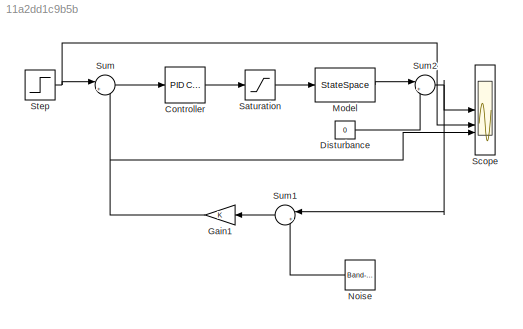
MODEL slx_11a2dd1c9b5b
KIND model
CONFIG AbsTol = auto
CONFIG EnableMultiTasking = off
CONFIG FixedStep = auto
CONFIG MaxStep = auto
CONFIG MinStep = auto
CONFIG RelTol = 1e-3
CONFIG SampleTimeConstraint = Unconstrained
CONFIG SolverName = VariableStepAuto
CONFIG StartTime = 0.0
CONFIG StopTime = 30
BLOCK [Reference] Controller  REF=slpidlib/PID Controller
  LibrarySourceBlock = simulink/Continuous/PID Controller
  SourceBlock = slpidlib/PID Controller
  SourceType = PID 1dof
BLOCK [Constant] Disturbance
  SampleTime = 1
  Value = 0
BLOCK [Gain] Gain1
BLOCK [StateSpace] Model
  A = [0 1; -g*m*l/I_s -b/I_s]
  B = [0;1]
  C = [-g*m*l/I -b/I_s]
  InitialCondition = 0
BLOCK [Reference] Noise  REF=simulink/Sources/Band-Limited
White Noise
  SourceBlock = simulink/Sources/Band-Limited\nWhite Noise
  SourceType = Band-Limited White Noise.
BLOCK [Saturate] Saturation
BLOCK [Scope] Scope
  ActiveDisplayYMaximum = 2.5714872856707736
  ActiveDisplayYMinimum = -2.2424341431070904
  Floating = off
  GraphicalSettings = {"Style":{"BackgroundColor":[0.12941176470588237,0.12941176470588237,0.12941176470588237],"AxesColor":[0.07058823529411765,0.07058823529411765,0.07058823529411765],"LabelsColor":[0.8509803921568627,0.8509803921568627,0.8509803921568627],"PreserveColors":false,"Visible":[true,true,true],"LineStyle":["-","-","-"],"LineWidth":[1.5,1.5,1.5],"BarWidth":[0.9,0.9,0.9],"LineColor":["auto","auto","auto"],"...<+2212ch>
  MultipleDisplayCache = [{"MaxYLimMag":2.5714872856707736,"MaxYLimReal":2.5714872856707736,"MinYLimMag":0,"MinYLimReal":-2.2424341431070904,"PlotAsMagnitudePhase":false,"ShowGrid":true,"ShowLegend":false,"Title":"%<SignalLabel>","YLabel":""}]
  NumInputPorts = 3
  ScopeFrameLocation = window
  Visible = on
  WasSavedAsWebScope = on
  WindowPosition = [322.000000,40.000000,637.000000,641.000000,]
BLOCK [Step] Step
  After = 0
  SampleTime = 0
  Time = .1
BLOCK [Sum] Sum
  Inputs = |+-
BLOCK [Sum] Sum1
  Inputs = |++
BLOCK [Sum] Sum2
  Inputs = |++
LINE Controller:1 -> Saturation:1
LINE Disturbance:1 -> Sum2:2
NET Gain1:1 -> Scope:3, Sum:2
LINE Model:1 -> Sum2:1
LINE Noise:1 -> Sum1:2
LINE Saturation:1 -> Model:1
NET Step:1 -> Scope:2, Sum:1
LINE Sum1:1 -> Gain1:1
NET Sum2:1 -> Scope:1, Sum1:1
LINE Sum:1 -> Controller:1
note: NET lines group one-source signal fan-out (src -> all destinations, sorted); 1:1 wires keep LINE
